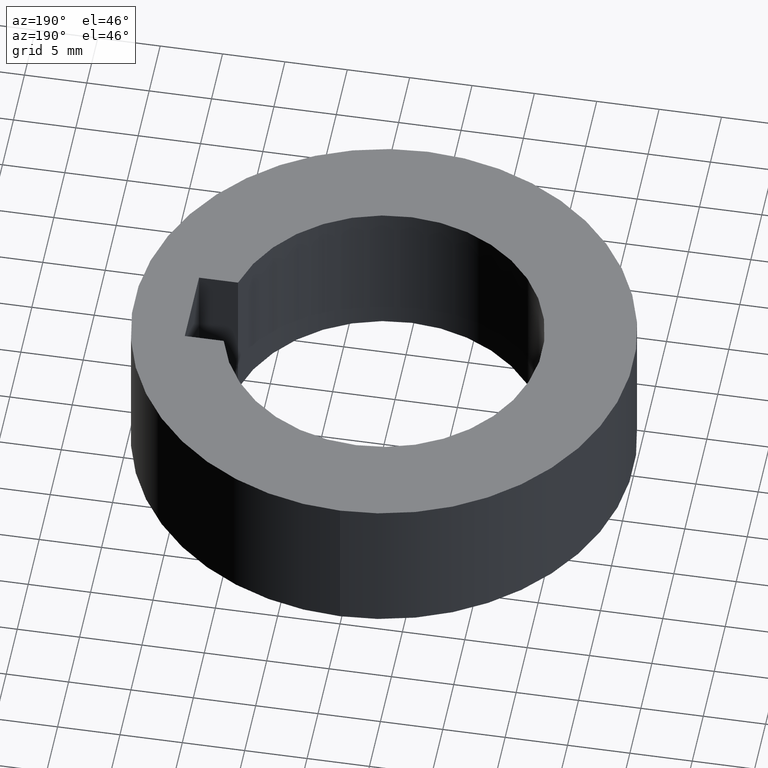
[diagram: clean part render]
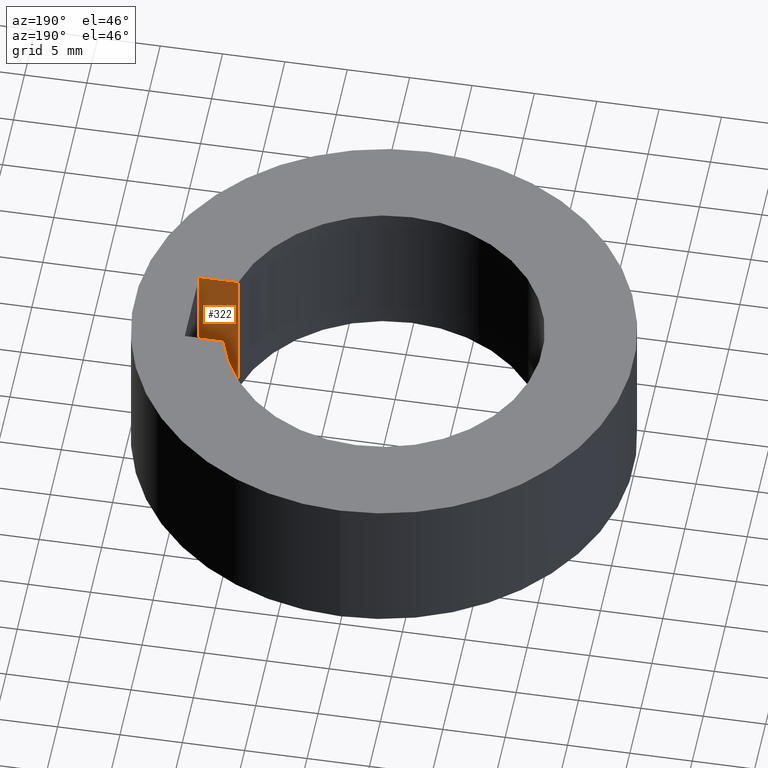
[diagram: same view with one face highlighted and labeled with its STEP entity id]
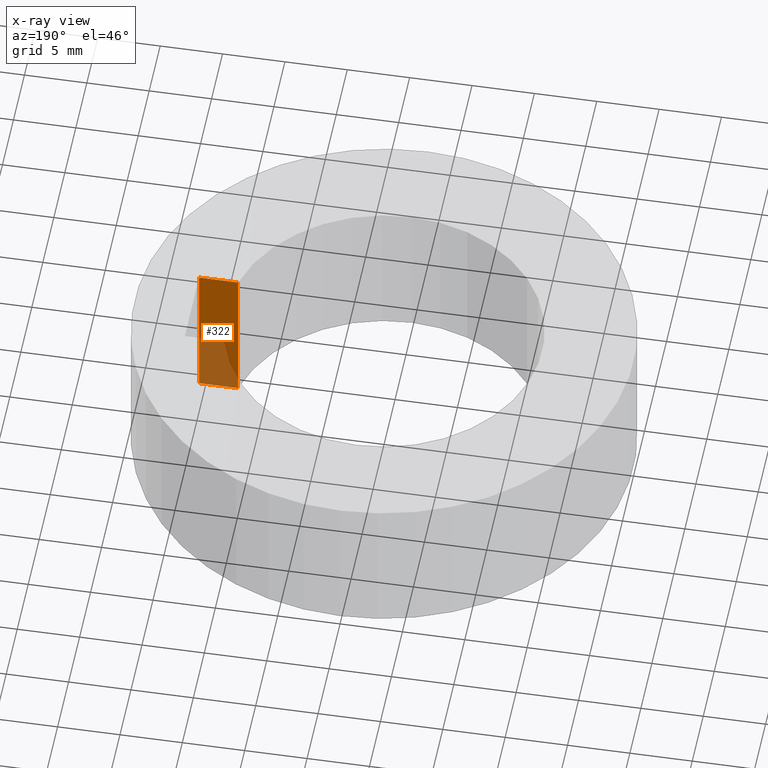
[diagram: x-ray of the same camera — body ghosted, the highlighted face saturated]
A machine part, auxiliary view. The second image highlights one B-rep face of the part: STEP entity #322.
The next image is the same camera in x-ray: the body ghosted, the highlighted face saturated — about 36% of this face is hidden behind the body in this view.
In plain terms, the highlighted planar face has unit normal (0, -1, 0).
Its self-contained STEP definition (entity closure, byte-faithful):
#25=DIRECTION('',(0.E0,0.E0,1.E0));
#26=VECTOR('',#25,1.2E1);
#27=CARTESIAN_POINT('',(1.227711285278E1,-3.25E0,-1.2E1));
#28=LINE('',#27,#26);
#102=DIRECTION('',(-1.E0,-1.123417079270E-13,0.E0));
#103=VECTOR('',#102,3.122887147217E0);
#104=CARTESIAN_POINT('',(1.54E1,-3.25E0,-1.2E1));
#105=LINE('',#104,#103);
#147=DIRECTION('',(0.E0,0.E0,1.E0));
#148=VECTOR('',#147,1.2E1);
#149=CARTESIAN_POINT('',(1.54E1,-3.25E0,-1.2E1));
#150=LINE('',#149,#148);
#154=DIRECTION('',(-1.E0,-1.121995032334E-13,0.E0));
#155=VECTOR('',#154,3.122887147217E0);
#156=CARTESIAN_POINT('',(1.54E1,-3.25E0,0.E0));
#157=LINE('',#156,#155);
#183=CARTESIAN_POINT('',(1.227711285278E1,-3.25E0,0.E0));
#185=VERTEX_POINT('',#183);
#196=CARTESIAN_POINT('',(1.227711285278E1,-3.25E0,-1.2E1));
#197=VERTEX_POINT('',#196);
#202=CARTESIAN_POINT('',(1.54E1,-3.25E0,0.E0));
#203=VERTEX_POINT('',#202);
#210=CARTESIAN_POINT('',(1.54E1,-3.25E0,-1.2E1));
#211=VERTEX_POINT('',#210);
#310=CARTESIAN_POINT('',(8.9E0,-3.25E0,0.E0));
#311=DIRECTION('',(0.E0,-1.E0,0.E0));
#312=DIRECTION('',(1.E0,0.E0,0.E0));
#313=AXIS2_PLACEMENT_3D('',#310,#311,#312);
#314=PLANE('',#313);
#315=ORIENTED_EDGE('',*,*,#233,.F.);
#316=ORIENTED_EDGE('',*,*,#298,.F.);
#318=ORIENTED_EDGE('',*,*,#317,.T.);
#319=ORIENTED_EDGE('',*,*,#249,.T.);
#320=EDGE_LOOP('',(#315,#316,#318,#319));
#321=FACE_OUTER_BOUND('',#320,.F.);
#233=EDGE_CURVE('',#197,#185,#28,.T.);
#249=EDGE_CURVE('',#203,#185,#157,.T.);
#298=EDGE_CURVE('',#211,#197,#105,.T.);
#317=EDGE_CURVE('',#211,#203,#150,.T.);
#322=ADVANCED_FACE('',(#321),#314,.F.);